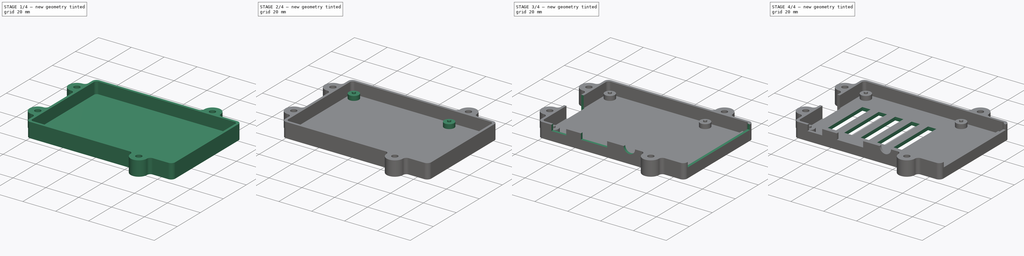
[diagram: build sequence overview — one tinted view per stage of 4, left to right]
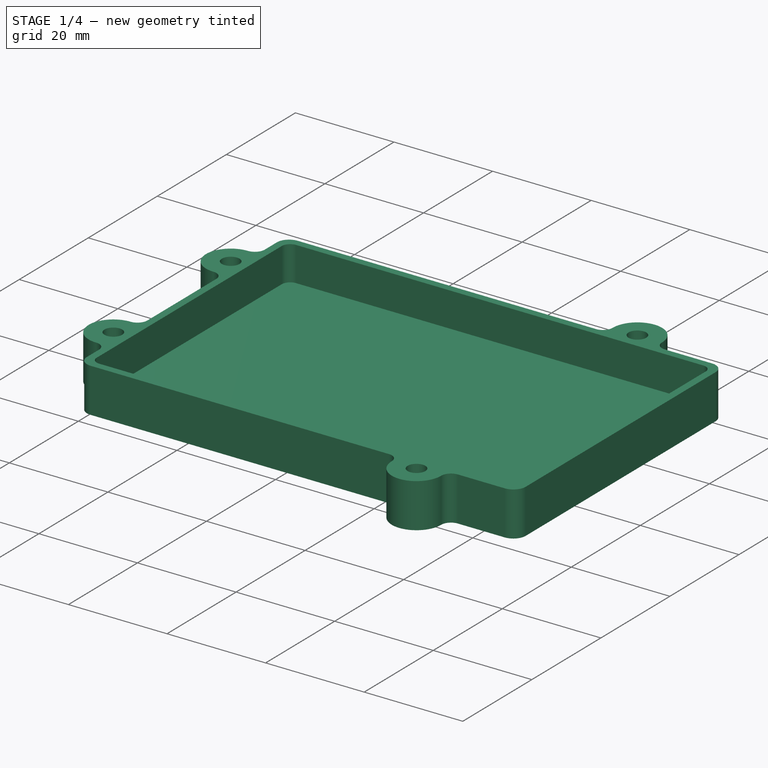
[diagram: stage 1 of 4 — iso view after this stage's code; geometry added in this stage tinted green]
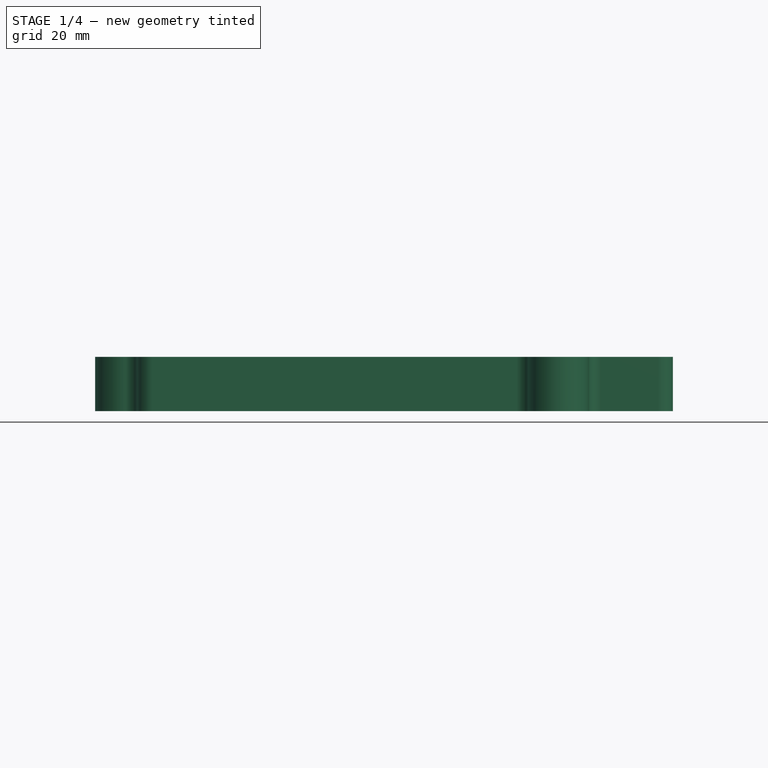
[diagram: stage 1 of 4 — front view after this stage's code; geometry added in this stage tinted green]
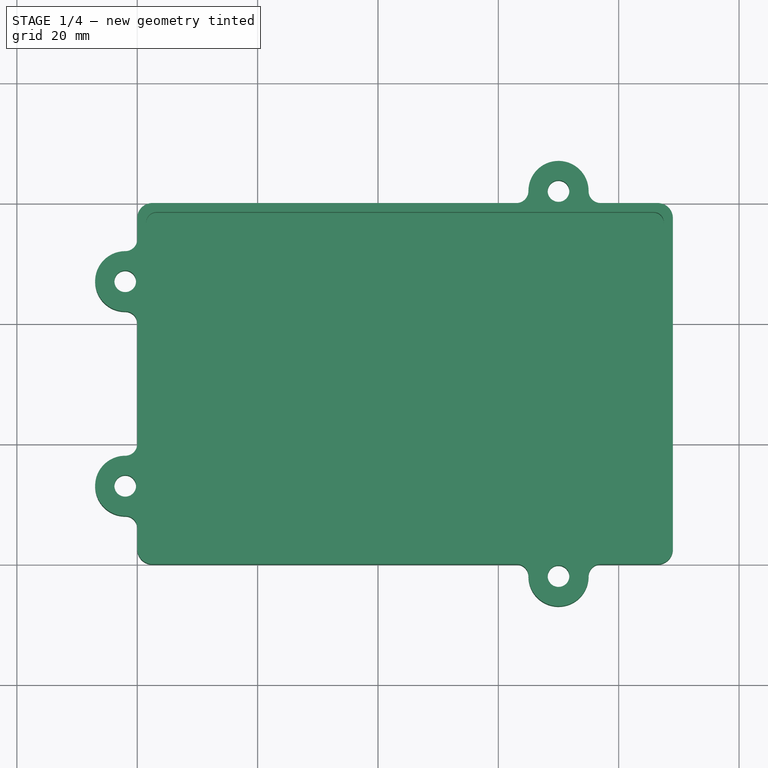
[diagram: stage 1 of 4 — top view after this stage's code; geometry added in this stage tinted green]
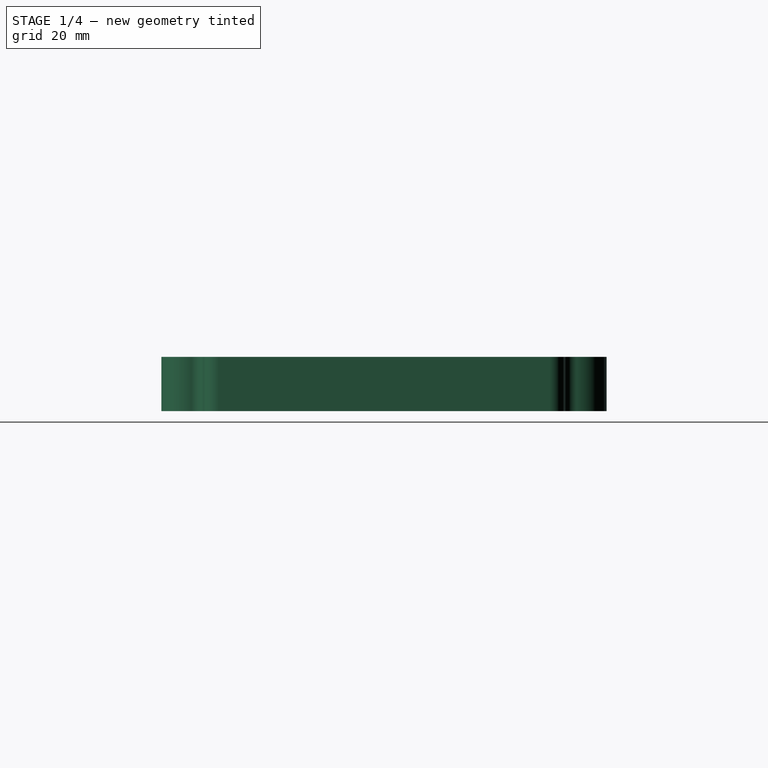
[diagram: stage 1 of 4 — right view after this stage's code; geometry added in this stage tinted green]
FCSTD DOCUMENT  (FreeCAD 0.14R3703 (Git))
Label: RPICase
License: CC-BY 3.0
LicenseURL: http://creativecommons.org/licenses/by/3.0/
objects: Sketcher::SketchObject×9, PartDesign::Pocket×6, PartDesign::Pad×3
note: 27 computed .brp shape members not serialized (recipe doc carries the construction recipe); baked Part::Feature solids carry a one-line shape summary decoded from their .brp

FEATURE [Sketcher::SketchObject] Sketch
  sketch-geometry (56):
    g0: LineSegment StartX=89.0026 StartY=2.5 StartZ=0 EndX=89.0026 EndY=57.5 EndZ=0
    g1: ArcOfCircle CenterX=2.5 CenterY=57.5 CenterZ=0 NormalX=0 NormalY=0 NormalZ=1 Radius=2.5 StartAngle=1.5708 EndAngle=3.14159
    g2: ArcOfCircle CenterX=86.5026 CenterY=57.5 CenterZ=0 NormalX=0 NormalY=0 NormalZ=1 Radius=2.5 StartAngle=2.3952e-08 EndAngle=1.5708
    g3: ArcOfCircle CenterX=2.5 CenterY=2.5 CenterZ=0 NormalX=0 NormalY=0 NormalZ=1 Radius=2.5 StartAngle=3.14159 EndAngle=4.71239
    g4: ArcOfCircle CenterX=86.5026 CenterY=2.5 CenterZ=0 NormalX=0 NormalY=0 NormalZ=1 Radius=2.5 StartAngle=4.71239 EndAngle=6.28319
    g5: ArcOfCircle CenterX=-2 CenterY=47 CenterZ=0 NormalX=0 NormalY=0 NormalZ=1 Radius=5 StartAngle=1.5708 EndAngle=4.71239
    g6: ArcOfCircle CenterX=-2 CenterY=13 CenterZ=0 NormalX=0 NormalY=0 NormalZ=1 Radius=5 StartAngle=1.5708 EndAngle=4.71239
    g7: LineSegment [constr] StartX=-2 StartY=52 StartZ=0 EndX=-2 EndY=47 EndZ=0
    g8: LineSegment [constr] StartX=-2 StartY=47 StartZ=0 EndX=-2 EndY=42 EndZ=0
    g9: LineSegment [constr] StartX=-2 StartY=42 StartZ=0 EndX=-2 EndY=18 EndZ=0
    g10: LineSegment [constr] StartX=-2 StartY=18 StartZ=0 EndX=-2 EndY=13 EndZ=0
    g11: LineSegment [constr] StartX=-2 StartY=13 StartZ=0 EndX=-2 EndY=8 EndZ=0
    g12: ArcOfCircle CenterX=-2 CenterY=40 CenterZ=0 NormalX=0 NormalY=0 NormalZ=1 Radius=2 StartAngle=0 EndAngle=1.5708
    g13: LineSegment [constr] StartX=-2 StartY=40 StartZ=0 EndX=0 EndY=40 EndZ=0
    g14: LineSegment [constr] StartX=-2 StartY=52 StartZ=0 EndX=-2 EndY=54 EndZ=0
    g15: LineSegment [constr] StartX=-2 StartY=54 StartZ=0 EndX=0 EndY=54 EndZ=0
    g16: ArcOfCircle CenterX=-2 CenterY=54 CenterZ=0 NormalX=0 NormalY=0 NormalZ=1 Radius=2 StartAngle=4.71239 EndAngle=6.28319
    g17: LineSegment [constr] StartX=-2 StartY=8 StartZ=0 EndX=-2 EndY=6 EndZ=0
    g18: LineSegment [constr] StartX=-2 StartY=6 StartZ=0 EndX=0 EndY=6 EndZ=0
    g19: ArcOfCircle CenterX=-2 CenterY=6 CenterZ=0 NormalX=0 NormalY=0 NormalZ=1 Radius=2 StartAngle=0 EndAngle=1.5708
    g20: ArcOfCircle CenterX=-2 CenterY=20 CenterZ=0 NormalX=0 NormalY=0 NormalZ=1 Radius=2 StartAngle=4.71239 EndAngle=6.28319
    g21: LineSegment [constr] StartX=-2 StartY=20 StartZ=0 EndX=0 EndY=20 EndZ=0
    g22: LineSegment StartX=0 StartY=57.5 StartZ=0 EndX=0 EndY=54 EndZ=0
    g23: LineSegment [constr] StartX=0 StartY=54 StartZ=0 EndX=0 EndY=40 EndZ=0
    g24: LineSegment StartX=0 StartY=40 StartZ=0 EndX=0 EndY=20 EndZ=0
    g25: LineSegment [constr] StartX=0 StartY=20 StartZ=0 EndX=0 EndY=6 EndZ=0
    g26: LineSegment StartX=0 StartY=6 StartZ=0 EndX=0 EndY=2.5 EndZ=0
    g27: LineSegment [constr] StartX=63 StartY=60 StartZ=0 EndX=63 EndY=62 EndZ=0
    g28: LineSegment [constr] StartX=63 StartY=62 StartZ=0 EndX=65 EndY=62 EndZ=0
    g29: LineSegment [constr] StartX=65 StartY=62 StartZ=0 EndX=70 EndY=62 EndZ=0
    g30: LineSegment [constr] StartX=70 StartY=62 StartZ=0 EndX=75 EndY=62 EndZ=0
    g31: LineSegment [constr] StartX=75 StartY=62 StartZ=0 EndX=77 EndY=62 EndZ=0
    g32: LineSegment [constr] StartX=77 StartY=62 StartZ=0 EndX=77 EndY=60 EndZ=0
    g33: ArcOfCircle CenterX=70 CenterY=62 CenterZ=0 NormalX=0 NormalY=0 NormalZ=1 Radius=5 StartAngle=0 EndAngle=3.14159
    g34: ArcOfCircle CenterX=77 CenterY=62 CenterZ=0 NormalX=0 NormalY=0 NormalZ=1 Radius=2 StartAngle=3.14159 EndAngle=4.71239
    g35: ArcOfCircle CenterX=63 CenterY=62 CenterZ=0 NormalX=0 NormalY=0 NormalZ=1 Radius=2 StartAngle=4.71239 EndAngle=6.28319
    g36: LineSegment [constr] StartX=63 StartY=0 StartZ=0 EndX=63 EndY=-2 EndZ=0
    g37: LineSegment [constr] StartX=63 StartY=-2 StartZ=0 EndX=65 EndY=-2 EndZ=0
    g38: LineSegment [constr] StartX=65 StartY=-2 StartZ=0 EndX=70 EndY=-2 EndZ=0
    g39: LineSegment [constr] StartX=70 StartY=-2 StartZ=0 EndX=75 EndY=-2 EndZ=0
    g40: LineSegment [constr] StartX=75 StartY=-2 StartZ=0 EndX=77 EndY=-2 EndZ=0
    g41: LineSegment [constr] StartX=77 StartY=-2 StartZ=0 EndX=77 EndY=0 EndZ=0
    g42: ArcOfCircle CenterX=70 CenterY=-2 CenterZ=0 NormalX=0 NormalY=0 NormalZ=1 Radius=5 StartAngle=3.14159 EndAngle=6.28319
    g43: ArcOfCircle CenterX=77 CenterY=-2 CenterZ=0 NormalX=0 NormalY=0 NormalZ=1 Radius=2 StartAngle=1.5708 EndAngle=3.14159
    g44: ArcOfCircle CenterX=63 CenterY=-2 CenterZ=0 NormalX=0 NormalY=0 NormalZ=1 Radius=2 StartAngle=0 EndAngle=1.5708
    g45: LineSegment [constr] StartX=70 StartY=62 StartZ=0 EndX=70 EndY=-2 EndZ=0
    g46: LineSegment StartX=2.5 StartY=0 StartZ=0 EndX=63 EndY=0 EndZ=0
    g47: LineSegment [constr] StartX=63 StartY=0 StartZ=0 EndX=77 EndY=0 EndZ=0
    g48: LineSegment StartX=77 StartY=0 StartZ=0 EndX=86.5026 EndY=0 EndZ=0
    g49: LineSegment StartX=2.5 StartY=60 StartZ=0 EndX=63 EndY=60 EndZ=0
    g50: LineSegment [constr] StartX=63 StartY=60 StartZ=0 EndX=77 EndY=60 EndZ=0
    g51: LineSegment StartX=77 StartY=60 StartZ=0 EndX=86.5026 EndY=60 EndZ=0
    g52: Circle CenterX=70 CenterY=62 CenterZ=0 NormalX=0 NormalY=0 NormalZ=1 Radius=1.8
    g53: Circle CenterX=-2 CenterY=47 CenterZ=0 NormalX=0 NormalY=0 NormalZ=1 Radius=1.8
    g54: Circle CenterX=-2 CenterY=13 CenterZ=0 NormalX=0 NormalY=0 NormalZ=1 Radius=1.8
    g55: Circle CenterX=70 CenterY=-2 CenterZ=0 NormalX=0 NormalY=0 NormalZ=1 Radius=1.8
  constraints (152):
    c: Vertical(g0)
    c: Coincident(g2,g0)
    c: Equal(g1,g2)
    c: Radius(g1) = 2.5
    c: Coincident(g4,g0)
    c: DistanceY(g2,g4) = -60
    c: Tangent(g4,g0)
    c: DistanceY(g3) = 0
    c: Equal(g1,g3)
    c: Equal(g3,g4)
    c: Coincident(g7,g5)
    c: Coincident(g7,g5)
    c: Coincident(g7,g8)
    c: Coincident(g8,g5)
    c: Coincident(g8,g9)
    c: Coincident(g9,g6)
    c: Vertical(g9)
    c: Coincident(g9,g10)
    c: Coincident(g10,g6)
    c: Vertical(g10)
    c: Coincident(g10,g11)
    c: Coincident(g11,g6)
    c: Vertical(g11)
    c: Vertical(g8)
    c: Vertical(g7)
    c: Equal(g5,g6)
    c: Radius(g6) = 5
    c: PointOnObject(g12,g9)
    c: Coincident(g12,g5)
    c: Coincident(g13,g12)
    c: Coincident(g13,g12)
    c: Horizontal(g13)
    c: Coincident(g14,g5)
    c: Vertical(g14)
    c: Coincident(g14,g15)
    c: Horizontal(g15)
    c: Coincident(g16,g14)
    c: Coincident(g16,g5)
    c: Coincident(g16,g15)
    c: Coincident(g17,g6)
    c: Vertical(g17)
    c: Coincident(g17,g18)
    c: Horizontal(g18)
    c: Coincident(g19,g17)
    c: Coincident(g19,g6)
    c: Coincident(g19,g18)
    c: PointOnObject(g20,g9)
    c: Coincident(g20,g6)
    c: Coincident(g21,g20)
    c: Coincident(g21,g20)
    c: Horizontal(g21)
    c: DistanceX(g18) = 2
    c: DistanceY(g5,g6) = -34
    c: Coincident(g22,g1)
    c: Coincident(g22,g15)
    c: Vertical(g22)
    c: Coincident(g22,g23)
    c: Coincident(g23,g12)
    c: Vertical(g23)
    c: Coincident(g23,g24)
    c: Coincident(g24,g20)
    c: Vertical(g24)
    c: Coincident(g24,g25)
    c: Coincident(g25,g18)
    c: Vertical(g25)
    c: Tangent(g25,g1)
    c: Coincident(g25,g26)
    c: Vertical(g26)
    c: Equal(g26,g22)
    c: Coincident(g26,g3)
    c: Tangent(g26,g3)
    c: DistanceX(g3) = 0
    c: DistanceX(g3,g0) = 89.0026
    c: Vertical(g27)
    c: Coincident(g27,g28)
    c: Horizontal(g28)
    c: Coincident(g28,g29)
    c: Horizontal(g29)
    c: Coincident(g29,g30)
    c: Horizontal(g30)
    c: Coincident(g30,g31)
    c: Horizontal(g31)
    c: Coincident(g31,g32)
    c: Vertical(g32)
    c: Coincident(g33,g29)
    c: Coincident(g33,g28)
    c: Coincident(g33,g30)
    c: Coincident(g34,g31)
    c: Coincident(g34,g30)
    c: Coincident(g34,g32)
    c: Coincident(g35,g27)
    c: Coincident(g35,g28)
    c: Coincident(g35,g27)
    c: Equal(g33,g6)
    c: Equal(g18,g27)
    c: Vertical(g36)
    c: Coincident(g36,g37)
    c: Horizontal(g37)
    c: Coincident(g37,g38)
    c: Horizontal(g38)
    c: Coincident(g38,g39)
    c: Horizontal(g39)
    c: Coincident(g39,g40)
    c: Horizontal(g40)
    c: Coincident(g40,g41)
    c: Vertical(g41)
    c: Coincident(g42,g38)
    c: Coincident(g42,g37)
    c: Coincident(g42,g39)
    c: Coincident(g43,g40)
    c: Coincident(g43,g41)
    c: Coincident(g43,g39)
    c: Coincident(g44,g36)
    c: Coincident(g44,g36)
    c: Coincident(g44,g37)
    c: Equal(g6,g42)
    c: Equal(g18,g36)
    c: Coincident(g45,g29)
    c: Coincident(g45,g38)
    c: Vertical(g45)
    c: DistanceX(g38) = 70
    c: Coincident(g46,g3)
    c: Coincident(g46,g36)
    c: Horizontal(g46)
    c: Coincident(g46,g47)
    c: Coincident(g47,g41)
    c: Horizontal(g47)
    c: Coincident(g47,g48)
    c: Coincident(g48,g4)
    c: Horizontal(g48)
    c: Tangent(g48,g4)
    c: Tangent(g3,g46)
    c: Coincident(g49,g1)
    c: Coincident(g49,g27)
    c: Horizontal(g49)
    c: Coincident(g49,g50)
    c: Coincident(g50,g32)
    c: Horizontal(g50)
    c: Coincident(g50,g51)
    c: Coincident(g51,g2)
    c: Horizontal(g51)
    c: Tangent(g2,g51)
    c: Tangent(g2,g0)
    c: Tangent(g1,g49)
    c: Coincident(g52,g29)
    c: Radius(g52) = 1.8
    c: Coincident(g53,g5)
    c: Equal(g53,g52)
    c: Coincident(g54,g6)
    c: Equal(g54,g52)
    c: Equal(g55,g52)
    c: Coincident(g55,g38)
FEATURE [PartDesign::Pad] Pad
  Length = 9
  Length2 = 100
  Sketch = -> Sketch
  Type = 0
FEATURE [Sketcher::SketchObject] Sketch001
  Placement = pos=(0,0,9) rot=(0,0,1;0rad)
  Support = -> Pad [Face30]
  sketch-geometry (8):
    g0: LineSegment StartX=87.5 StartY=3.2 StartZ=0 EndX=87.5 EndY=56.8 EndZ=0
    g1: LineSegment StartX=1.5 StartY=56.8 StartZ=0 EndX=1.5 EndY=3.2 EndZ=0
    g2: ArcOfCircle CenterX=3.2 CenterY=56.8 CenterZ=0 NormalX=0 NormalY=0 NormalZ=1 Radius=1.7 StartAngle=1.5708 EndAngle=3.14159
    g3: ArcOfCircle CenterX=85.8 CenterY=56.8 CenterZ=0 NormalX=0 NormalY=0 NormalZ=1 Radius=1.7 StartAngle=4.687e-09 EndAngle=1.5708
    g4: LineSegment StartX=3.19999 StartY=58.5 StartZ=0 EndX=85.8 EndY=58.5 EndZ=0
    g5: ArcOfCircle CenterX=3.2 CenterY=3.2 CenterZ=0 NormalX=0 NormalY=0 NormalZ=1 Radius=1.7 StartAngle=3.14159 EndAngle=4.71238
    g6: ArcOfCircle CenterX=85.8 CenterY=3.2 CenterZ=0 NormalX=0 NormalY=0 NormalZ=1 Radius=1.7 StartAngle=4.71239 EndAngle=6.28319
    g7: LineSegment StartX=3.19999 StartY=1.5 StartZ=0 EndX=85.8 EndY=1.5 EndZ=0
  constraints (28):
    c: Vertical(g0)
    c: Vertical(g1)
    c: Coincident(g2,g1)
    c: Coincident(g3,g0)
    c: Coincident(g4,g2)
    c: Coincident(g4,g3)
    c: Horizontal(g4)
    c: Tangent(g2,g4)
    c: Tangent(g3,g4)
    c: Tangent(g3,g0)
    c: Tangent(g2,g1)
    c: DistanceX(g1,g0) = 86
    c: Coincident(g5,g1)
    c: Coincident(g6,g0)
    c: Coincident(g7,g5)
    c: Coincident(g7,g6)
    c: Horizontal(g7)
    c: DistanceY(g3,g6) = -57
    c: Radius(g3) = 1.7
    c: Equal(g3,g2)
    c: Equal(g2,g5)
    c: Equal(g5,g6)
    c: Tangent(g5,g7)
    c: Tangent(g6,g7)
    c: Tangent(g6,g0)
    c: Tangent(g5,g1)
    c: DistanceY(g5) = 1.5
    c: DistanceX(g1) = 1.5
FEATURE [PartDesign::Pocket] Pocket
  Length = 7
  Sketch = -> Sketch001
  Type = 0
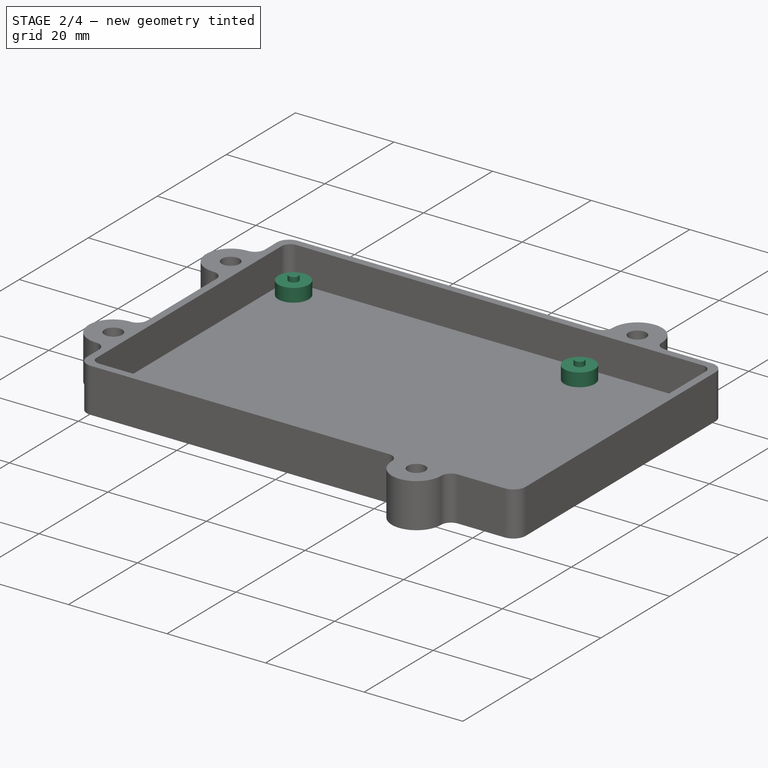
[diagram: stage 2 of 4 — iso view after this stage's code; geometry added in this stage tinted green]
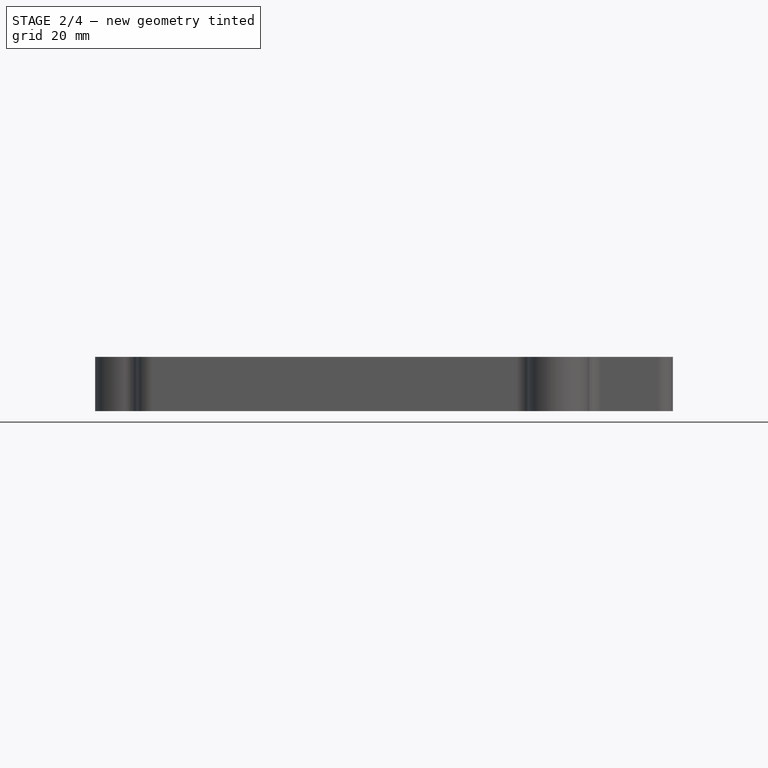
[diagram: stage 2 of 4 — front view after this stage's code; geometry added in this stage tinted green]
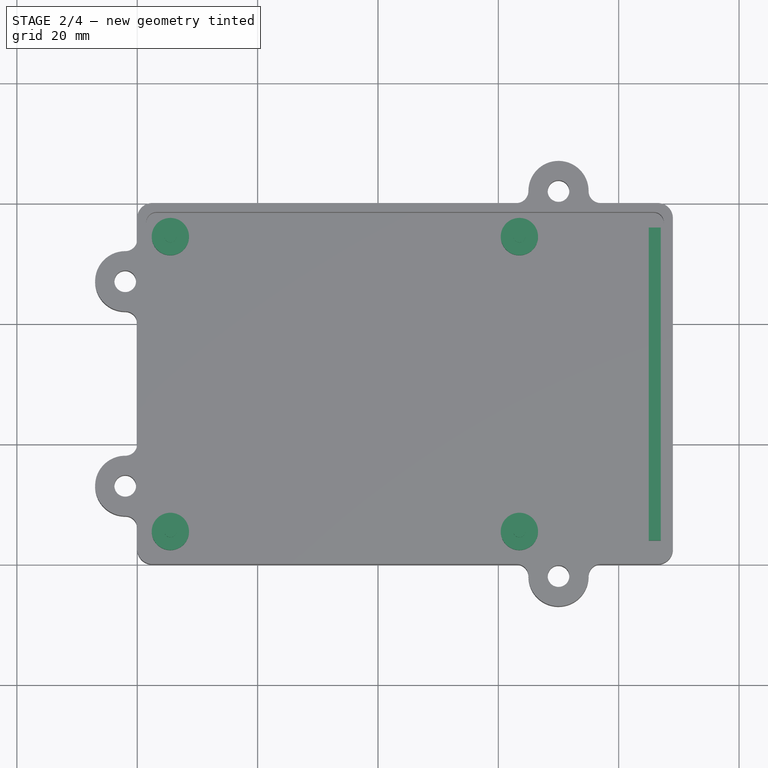
[diagram: stage 2 of 4 — top view after this stage's code; geometry added in this stage tinted green]
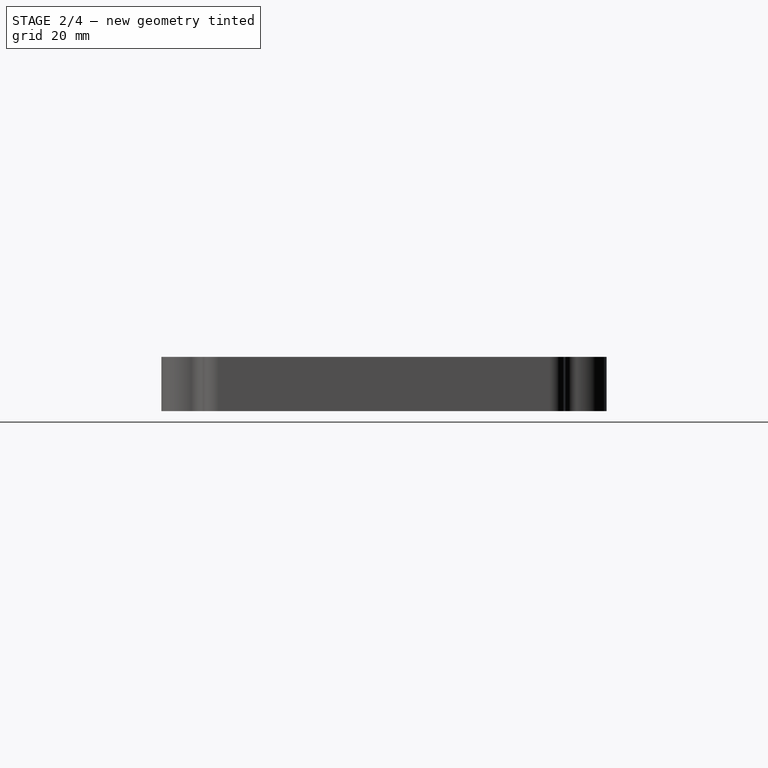
[diagram: stage 2 of 4 — right view after this stage's code; geometry added in this stage tinted green]
FEATURE [Sketcher::SketchObject] Sketch002
  Placement = pos=(0,0,2) rot=(0,0,1;0rad)
  Support = -> Pocket [Face39]
  sketch-geometry (12):
    g0: Circle CenterX=5.5 CenterY=5.5 CenterZ=0 NormalX=0 NormalY=0 NormalZ=1 Radius=3.1
    g1: Circle CenterX=5.5 CenterY=54.5 CenterZ=0 NormalX=0 NormalY=0 NormalZ=1 Radius=3.1
    g2: Circle CenterX=63.5 CenterY=54.5 CenterZ=0 NormalX=0 NormalY=0 NormalZ=1 Radius=3.1
    g3: Circle CenterX=63.5 CenterY=5.5 CenterZ=0 NormalX=0 NormalY=0 NormalZ=1 Radius=3.1
    g4: LineSegment [constr] StartX=5.5 StartY=54.5 StartZ=0 EndX=63.5 EndY=54.5 EndZ=0
    g5: LineSegment [constr] StartX=63.5 StartY=54.5 StartZ=0 EndX=63.5 EndY=5.5 EndZ=0
    g6: LineSegment [constr] StartX=63.5 StartY=5.5 StartZ=0 EndX=5.5 EndY=5.5 EndZ=0
    g7: LineSegment [constr] StartX=5.5 StartY=5.5 StartZ=0 EndX=5.5 EndY=54.5 EndZ=0
    g8: LineSegment StartX=87 StartY=56 StartZ=0 EndX=85 EndY=56 EndZ=0
    g9: LineSegment StartX=85 StartY=56 StartZ=0 EndX=85 EndY=4 EndZ=0
    g10: LineSegment StartX=85 StartY=4 StartZ=0 EndX=87 EndY=4 EndZ=0
    g11: LineSegment StartX=87 StartY=4 StartZ=0 EndX=87 EndY=56 EndZ=0
  constraints (32):
    c: DistanceX(g0) = 5.5
    c: DistanceY(g0) = 5.5
    c: Coincident(g4,g5)
    c: Coincident(g5,g6)
    c: Coincident(g6,g7)
    c: Coincident(g7,g4)
    c: Horizontal(g4)
    c: Horizontal(g6)
    c: Vertical(g5)
    c: Vertical(g7)
    c: Coincident(g4,g1)
    c: Coincident(g5,g3)
    c: Coincident(g4,g2)
    c: Coincident(g0,g6)
    c: DistanceX(g4) = 58
    c: DistanceY(g7) = 49
    c: Equal(g3,g2)
    c: Equal(g2,g1)
    c: Equal(g1,g0)
    c: Radius(g0) = 3.1
    c: Coincident(g8,g9)
    c: Coincident(g9,g10)
    c: Coincident(g10,g11)
    c: Coincident(g11,g8)
    c: Horizontal(g8)
    c: Horizontal(g10)
    c: Vertical(g9)
    c: Vertical(g11)
    c: DistanceX(g10) = 2
    c: DistanceX(g9) = 85
    c: DistanceY(g9) = 4
    c: DistanceY(g11) = 52
FEATURE [PartDesign::Pad] Pad001
  Length = 2.7
  Length2 = 100
  Sketch = -> Sketch002
  Type = 0
FEATURE [Sketcher::SketchObject] Sketch003
  Placement = pos=(0,0,4.7) rot=(0,0,1;0rad)
  Support = -> Pad001 [Face48]
  sketch-geometry (8):
    g0: LineSegment [constr] StartX=5.5 StartY=54.5 StartZ=0 EndX=63.5 EndY=54.5 EndZ=0
    g1: LineSegment [constr] StartX=63.5 StartY=54.5 StartZ=0 EndX=63.5 EndY=5.5 EndZ=0
    g2: LineSegment [constr] StartX=63.5 StartY=5.5 StartZ=0 EndX=5.5 EndY=5.5 EndZ=0
    g3: LineSegment [constr] StartX=5.5 StartY=5.5 StartZ=0 EndX=5.5 EndY=54.5 EndZ=0
    g4: Circle CenterX=5.5 CenterY=54.5 CenterZ=0 NormalX=0 NormalY=0 NormalZ=1 Radius=1
    g5: Circle CenterX=63.5 CenterY=54.5 CenterZ=0 NormalX=0 NormalY=0 NormalZ=1 Radius=1
    g6: Circle CenterX=63.5 CenterY=5.5 CenterZ=0 NormalX=0 NormalY=0 NormalZ=1 Radius=1
    g7: Circle CenterX=5.5 CenterY=5.5 CenterZ=0 NormalX=0 NormalY=0 NormalZ=1 Radius=1
  constraints (20):
    c: Coincident(g0,g1)
    c: Coincident(g1,g2)
    c: Coincident(g2,g3)
    c: Coincident(g3,g0)
    c: Horizontal(g0)
    c: Horizontal(g2)
    c: Vertical(g1)
    c: Vertical(g3)
    c: DistanceX(g2) = 5.5
    c: DistanceY(g2) = 5.5
    c: DistanceY(g3) = 49
    c: DistanceX(g2) = -58
    c: Coincident(g4,g0)
    c: Coincident(g5,g0)
    c: Coincident(g6,g1)
    c: Coincident(g7,g2)
    c: Equal(g7,g4)
    c: Equal(g4,g5)
    c: Equal(g5,g6)
    c: Radius(g7) = 1
FEATURE [PartDesign::Pad] Pad002
  Length = 1
  Length2 = 100
  Sketch = -> Sketch003
  Type = 0
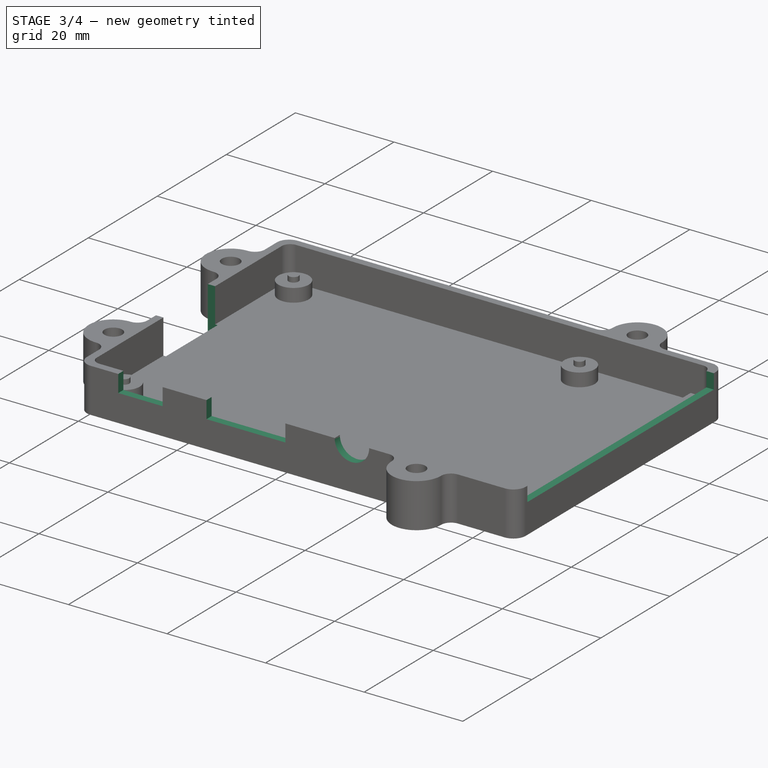
[diagram: stage 3 of 4 — iso view after this stage's code; geometry added in this stage tinted green]
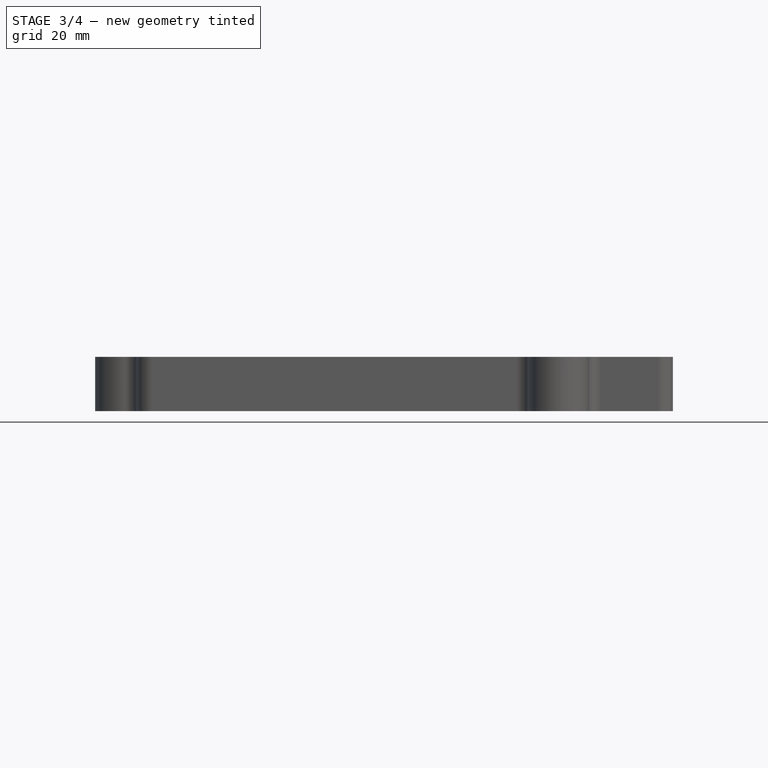
[diagram: stage 3 of 4 — front view after this stage's code; geometry added in this stage tinted green]
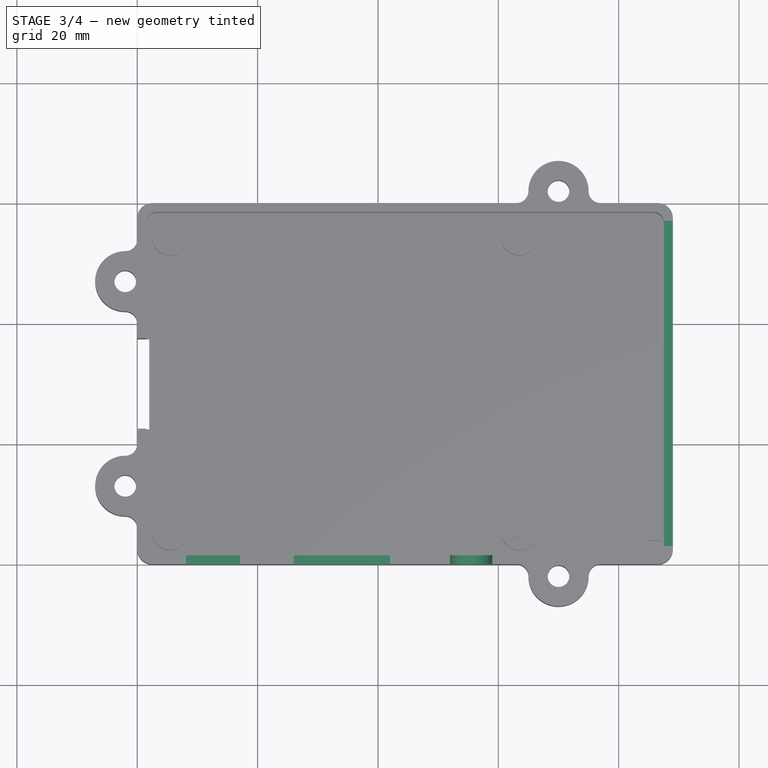
[diagram: stage 3 of 4 — top view after this stage's code; geometry added in this stage tinted green]
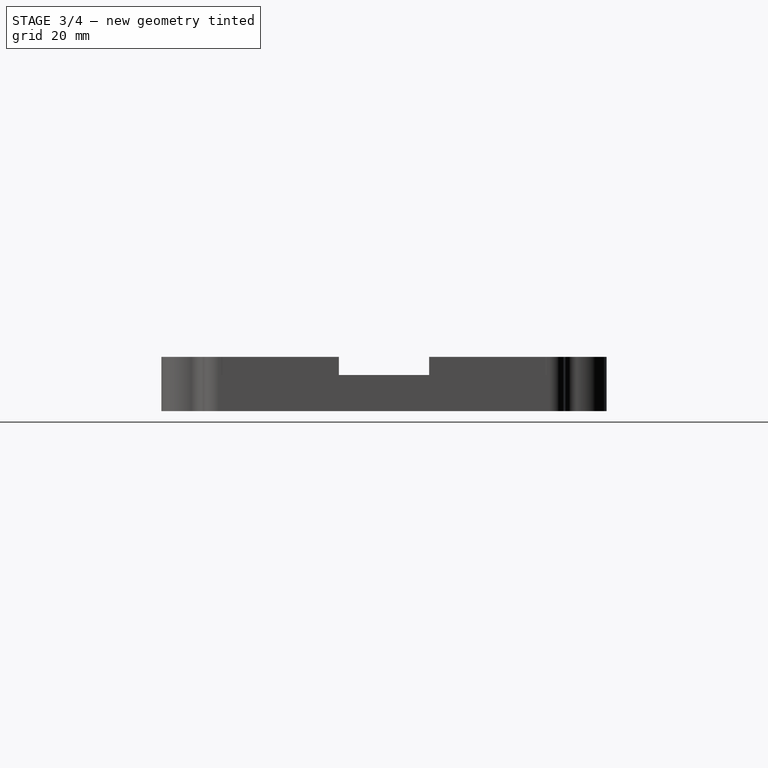
[diagram: stage 3 of 4 — right view after this stage's code; geometry added in this stage tinted green]
FEATURE [Sketcher::SketchObject] Sketch004
  Placement = pos=(0,0,0) rot=(0.57735,-0.57735,-0.57735;2.0944rad)
  Support = -> Pad002 [Face15]
  sketch-geometry (5):
    g0: LineSegment StartX=-37.5 StartY=9 StartZ=0 EndX=-22.5 EndY=9 EndZ=0
    g1: LineSegment StartX=-22.5 StartY=9 StartZ=0 EndX=-22.5 EndY=0 EndZ=0
    g2: LineSegment StartX=-37.5 StartY=0 StartZ=0 EndX=-37.5 EndY=9 EndZ=0
    g3: LineSegment StartX=-37.5 StartY=0 StartZ=0 EndX=-30 EndY=0 EndZ=0
    g4: LineSegment StartX=-30 StartY=0 StartZ=0 EndX=-22.5 EndY=0 EndZ=0
  constraints (15):
    c: Coincident(g0,g1)
    c: Coincident(g2,g0)
    c: Horizontal(g0)
    c: Vertical(g1)
    c: Vertical(g2)
    c: Coincident(g3,g2)
    c: Horizontal(g3)
    c: Coincident(g3,g4)
    c: Horizontal(g4)
    c: Coincident(g1,g4)
    c: Equal(g4,g3)
    c: DistanceX(g3) = -30
    c: DistanceY(g3) = 0
    c: DistanceY(g1) = -9
    c: DistanceX(g0) = 15
FEATURE [PartDesign::Pocket] Pocket001
  Length = 2
  Sketch = -> Sketch004
  Type = 0
FEATURE [Sketcher::SketchObject] Sketch005
  Placement = pos=(89.0026,0,0) rot=(0.57735,0.57735,0.57735;2.0944rad)
  Support = -> Pocket001 [Face7]
  sketch-geometry (5):
    g0: LineSegment StartX=3 StartY=9 StartZ=0 EndX=57 EndY=9 EndZ=0
    g1: LineSegment StartX=57 StartY=9 StartZ=0 EndX=57 EndY=6 EndZ=0
    g2: LineSegment StartX=3 StartY=6 StartZ=0 EndX=3 EndY=9 EndZ=0
    g3: LineSegment StartX=3 StartY=6 StartZ=0 EndX=30 EndY=6 EndZ=0
    g4: LineSegment StartX=30 StartY=6 StartZ=0 EndX=57 EndY=6 EndZ=0
  constraints (15):
    c: Coincident(g0,g1)
    c: Coincident(g2,g0)
    c: Horizontal(g0)
    c: Vertical(g1)
    c: Vertical(g2)
    c: DistanceY(g2) = 3
    c: DistanceX(g0) = 54
    c: Coincident(g3,g2)
    c: Horizontal(g3)
    c: Coincident(g3,g4)
    c: Coincident(g4,g1)
    c: Horizontal(g4)
    c: Equal(g4,g3)
    c: DistanceX(g3) = 30
    c: DistanceY(g3) = 6
FEATURE [PartDesign::Pocket] Pocket002
  Length = 2
  Sketch = -> Sketch005
  Type = 0
FEATURE [Sketcher::SketchObject] Sketch006
  Placement = pos=(0,0,0) rot=(1,0,0;1.5708rad)
  Support = -> Pocket002 [Face1]
  sketch-geometry (12):
    g0: Circle CenterX=55.5 CenterY=9 CenterZ=0 NormalX=0 NormalY=0 NormalZ=1 Radius=3.5
    g1: LineSegment StartX=42 StartY=5.5 StartZ=0 EndX=42 EndY=13.5 EndZ=0
    g2: LineSegment StartX=42 StartY=13.5 StartZ=0 EndX=26 EndY=13.5 EndZ=0
    g3: LineSegment StartX=26 StartY=13.5 StartZ=0 EndX=26 EndY=5.5 EndZ=0
    g4: LineSegment StartX=17.1 StartY=5.5 StartZ=0 EndX=17.1 EndY=9 EndZ=0
    g5: LineSegment StartX=17.1 StartY=9 StartZ=0 EndX=8.1 EndY=9 EndZ=0
    g6: LineSegment StartX=8.1 StartY=9 StartZ=0 EndX=8.1 EndY=5.5 EndZ=0
    g7: LineSegment StartX=26 StartY=5.5 StartZ=0 EndX=34 EndY=5.5 EndZ=0
    g8: LineSegment StartX=34 StartY=5.5 StartZ=0 EndX=42 EndY=5.5 EndZ=0
    g9: LineSegment StartX=8.1 StartY=5.5 StartZ=0 EndX=12.6 EndY=5.5 EndZ=0
    g10: LineSegment StartX=12.6 StartY=5.5 StartZ=0 EndX=17.1 EndY=5.5 EndZ=0
    g11: LineSegment [constr] StartX=17.1 StartY=5.5 StartZ=0 EndX=26 EndY=5.5 EndZ=0
  constraints (35):
    c: Coincident(g1,g2)
    c: Coincident(g2,g3)
    c: Horizontal(g2)
    c: Vertical(g1)
    c: Vertical(g3)
    c: Coincident(g4,g5)
    c: Coincident(g5,g6)
    c: Horizontal(g5)
    c: Vertical(g4)
    c: Vertical(g6)
    c: DistanceX(g5) = -9
    c: DistanceX(g2) = -16
    c: Radius(g0) = 3.5
    c: Coincident(g3,g7)
    c: Horizontal(g7)
    c: Coincident(g7,g8)
    c: Coincident(g8,g1)
    c: Horizontal(g8)
    c: Coincident(g6,g9)
    c: Horizontal(g9)
    c: Coincident(g9,g10)
    c: Coincident(g10,g4)
    c: Horizontal(g10)
    c: Equal(g10,g9)
    c: Equal(g7,g8)
    c: DistanceY(g4) = 3.5
    c: DistanceY(g1) = 8
    c: Coincident(g11,g4)
    c: Coincident(g11,g3)
    c: Horizontal(g11)
    c: DistanceX(g-1,g9) = 12.6
    c: DistanceX(g-1,g7) = 34
    c: DistanceX(g-1,g0) = 55.5
    c: DistanceY(g-1,g0) = 9
    c: DistanceY(g-1,g6) = 5.5
FEATURE [PartDesign::Pocket] Pocket003
  Length = 5
  Sketch = -> Sketch006
  Type = 0
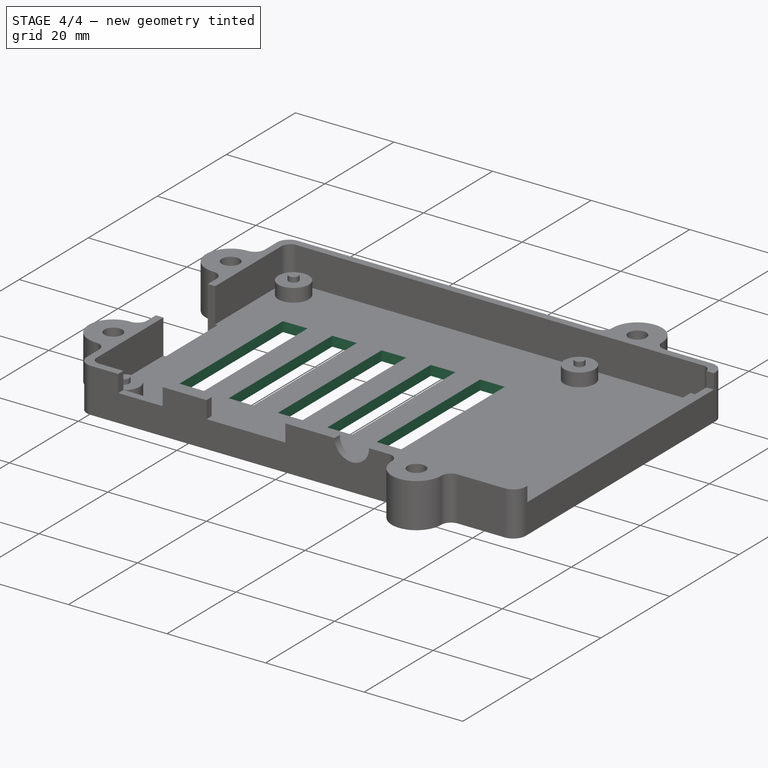
[diagram: stage 4 of 4 — iso view after this stage's code; geometry added in this stage tinted green]
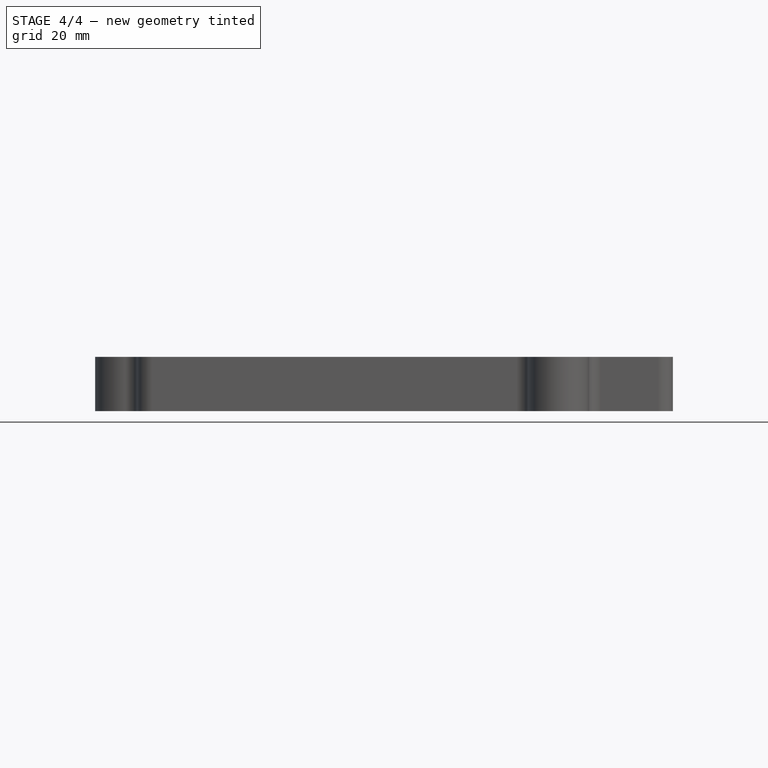
[diagram: stage 4 of 4 — front view after this stage's code; geometry added in this stage tinted green]
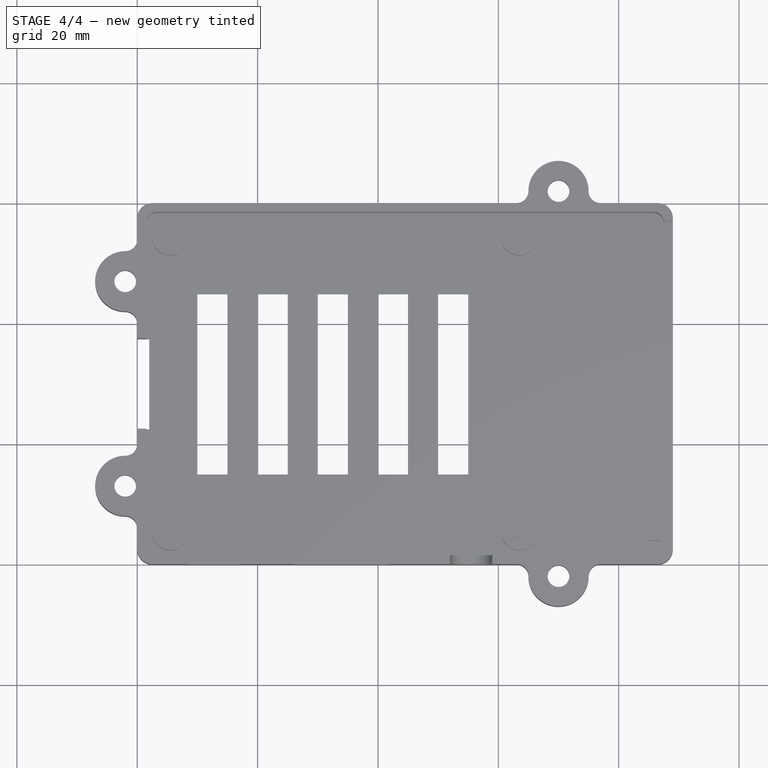
[diagram: stage 4 of 4 — top view after this stage's code; geometry added in this stage tinted green]
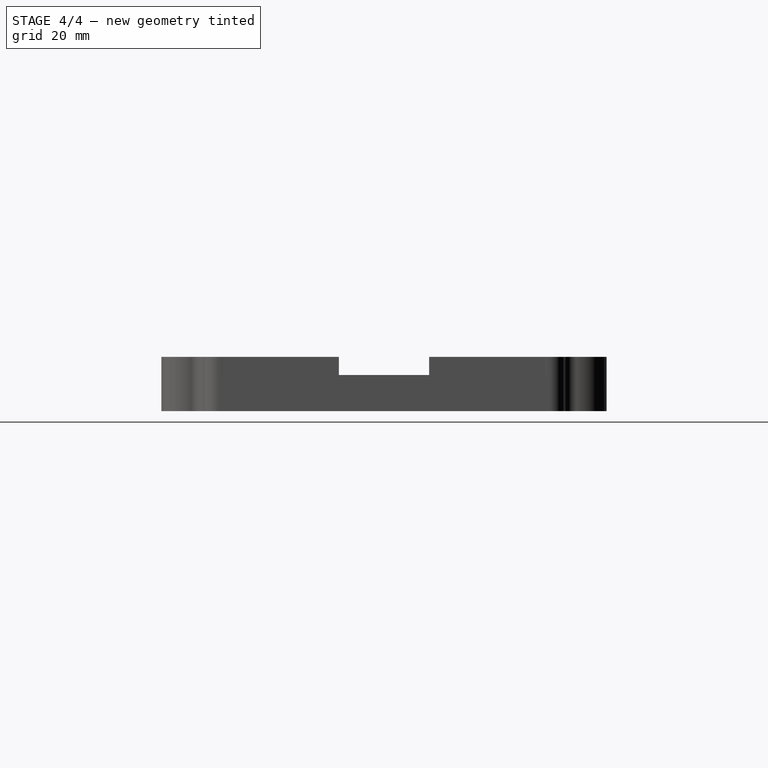
[diagram: stage 4 of 4 — right view after this stage's code; geometry added in this stage tinted green]
FEATURE [Sketcher::SketchObject] Sketch008
  Placement = pos=(0,0,0) rot=(1,0,0;3.14159rad)
  Support = -> Pocket003 [Face4]
  sketch-geometry (41):
    g0: LineSegment StartX=-5 StartY=-14.7321 StartZ=0 EndX=-5 EndY=-11.2679 EndZ=0
    g1: LineSegment StartX=-5 StartY=-11.2679 StartZ=0 EndX=-2 EndY=-9.5359 EndZ=0
    g2: LineSegment StartX=-2 StartY=-9.5359 StartZ=0 EndX=1 EndY=-11.2679 EndZ=0
    g3: LineSegment StartX=1 StartY=-11.2679 StartZ=0 EndX=1 EndY=-14.7321 EndZ=0
    g4: LineSegment StartX=1 StartY=-14.7321 StartZ=0 EndX=-2 EndY=-16.4641 EndZ=0
    g5: LineSegment StartX=-2 StartY=-16.4641 StartZ=0 EndX=-5 EndY=-14.7321 EndZ=0
    g6: LineSegment [constr] StartX=-5 StartY=-14.7321 StartZ=0 EndX=-2 EndY=-13 EndZ=0
    g7: LineSegment [constr] StartX=-2 StartY=-13 StartZ=0 EndX=1 EndY=-14.7321 EndZ=0
    g8: LineSegment [constr] StartX=-5 StartY=-11.2679 StartZ=0 EndX=-2 EndY=-13 EndZ=0
    g9: LineSegment [constr] StartX=-2 StartY=-13 StartZ=0 EndX=-2 EndY=-9.5359 EndZ=0
    g10: LineSegment [constr] StartX=-2 StartY=-13 StartZ=0 EndX=1 EndY=-11.2679 EndZ=0
    g11: LineSegment StartX=-5 StartY=-48.7321 StartZ=0 EndX=-5 EndY=-45.2679 EndZ=0
    g12: LineSegment StartX=-5 StartY=-45.2679 StartZ=0 EndX=-2 EndY=-43.5359 EndZ=0
    g13: LineSegment StartX=-2 StartY=-43.5359 StartZ=0 EndX=1 EndY=-45.2679 EndZ=0
    g14: LineSegment StartX=1 StartY=-45.2679 StartZ=0 EndX=1 EndY=-48.7321 EndZ=0
    g15: LineSegment StartX=1 StartY=-48.7321 StartZ=0 EndX=-2 EndY=-50.4641 EndZ=0
    g16: LineSegment StartX=-2 StartY=-50.4641 StartZ=0 EndX=-5 EndY=-48.7321 EndZ=0
    g17: LineSegment [constr] StartX=-2 StartY=-43.5359 StartZ=0 EndX=-2 EndY=-47 EndZ=0
    g18: LineSegment [constr] StartX=-2 StartY=-47 StartZ=0 EndX=-5 EndY=-45.2679 EndZ=0
    g19: LineSegment [constr] StartX=-5 StartY=-48.7321 StartZ=0 EndX=-2 EndY=-47 EndZ=0
    g20: LineSegment [constr] StartX=-2 StartY=-47 StartZ=0 EndX=-2 EndY=-50.4641 EndZ=0
    g21: LineSegment StartX=67 StartY=0.267949 StartZ=0 EndX=67 EndY=3.73205 EndZ=0
    g22: LineSegment StartX=67 StartY=3.73205 StartZ=0 EndX=70 EndY=5.4641 EndZ=0
    g23: LineSegment StartX=70 StartY=5.4641 StartZ=0 EndX=73 EndY=3.73205 EndZ=0
    g24: LineSegment StartX=73 StartY=3.73205 StartZ=0 EndX=73 EndY=0.267949 EndZ=0
    g25: LineSegment StartX=73 StartY=0.267949 StartZ=0 EndX=70 EndY=-1.4641 EndZ=0
    g26: LineSegment StartX=70 StartY=-1.4641 StartZ=0 EndX=67 EndY=0.267949 EndZ=0
    g27: LineSegment [constr] StartX=70 StartY=5.4641 StartZ=0 EndX=70 EndY=2 EndZ=0
    g28: LineSegment [constr] StartX=70 StartY=2 StartZ=0 EndX=67 EndY=3.73205 EndZ=0
    g29: LineSegment [constr] StartX=67 StartY=0.267949 StartZ=0 EndX=70 EndY=2 EndZ=0
    g30: LineSegment [constr] StartX=70 StartY=2 StartZ=0 EndX=70 EndY=-1.4641 EndZ=0
    g31: LineSegment StartX=67 StartY=-63.7321 StartZ=0 EndX=67 EndY=-60.2679 EndZ=0
    g32: LineSegment StartX=67 StartY=-60.2679 StartZ=0 EndX=70 EndY=-58.5359 EndZ=0
    g33: LineSegment StartX=70 StartY=-58.5359 StartZ=0 EndX=73 EndY=-60.2679 EndZ=0
    g34: LineSegment StartX=73 StartY=-60.2679 StartZ=0 EndX=73 EndY=-63.7321 EndZ=0
    g35: LineSegment StartX=73 StartY=-63.7321 StartZ=0 EndX=70 EndY=-65.4641 EndZ=0
    g36: LineSegment StartX=70 StartY=-65.4641 StartZ=0 EndX=67 EndY=-63.7321 EndZ=0
    g37: LineSegment [constr] StartX=67 StartY=-60.2679 StartZ=0 EndX=70 EndY=-62 EndZ=0
    g38: LineSegment [constr] StartX=70 StartY=-62 StartZ=0 EndX=70 EndY=-58.5359 EndZ=0
    g39: LineSegment [constr] StartX=67 StartY=-63.7321 StartZ=0 EndX=70 EndY=-62 EndZ=0
    g40: LineSegment [constr] StartX=70 StartY=-62 StartZ=0 EndX=70 EndY=-65.4641 EndZ=0
  constraints (112):
    c: Vertical(g0)
    c: Coincident(g0,g1)
    c: Coincident(g1,g2)
    c: Coincident(g2,g3)
    c: Vertical(g3)
    c: Coincident(g3,g4)
    c: Coincident(g4,g5)
    c: Coincident(g5,g0)
    c: Equal(g0,g1)
    c: Equal(g1,g2)
    c: Equal(g2,g3)
    c: Equal(g3,g4)
    c: Equal(g4,g5)
    c: Coincident(g0,g6)
    c: Coincident(g6,g7)
    c: Coincident(g7,g3)
    c: Coincident(g0,g8)
    c: Coincident(g8,g6)
    c: Coincident(g9,g6)
    c: Coincident(g9,g1)
    c: Equal(g7,g6)
    c: Equal(g6,g8)
    c: Equal(g8,g9)
    c: Coincident(g10,g6)
    c: Coincident(g10,g2)
    c: Equal(g10,g9)
    c: DistanceX(g0,g3) = 6
    c: DistanceX(g6) = -2
    c: DistanceY(g6) = -13
    c: Vertical(g11)
    c: Coincident(g11,g12)
    c: Coincident(g12,g13)
    c: Coincident(g13,g14)
    c: Vertical(g14)
    c: Coincident(g14,g15)
    c: Coincident(g15,g16)
    c: Coincident(g16,g11)
    c: Equal(g16,g11)
    c: Equal(g11,g12)
    c: Equal(g12,g13)
    c: Equal(g13,g14)
    c: Equal(g14,g15)
    c: Coincident(g12,g17)
    c: Coincident(g17,g18)
    c: Coincident(g18,g11)
    c: Coincident(g11,g19)
    c: Coincident(g19,g17)
    c: Coincident(g19,g20)
    c: Coincident(g20,g15)
    c: Vertical(g20)
    c: Equal(g17,g18)
    c: Equal(g18,g20)
    c: Equal(g20,g19)
    c: DistanceX(g11,g14) = 6
    c: DistanceX(g17) = -2
    c: DistanceY(g17) = -47
    c: Vertical(g21)
    c: Coincident(g21,g22)
    c: Coincident(g22,g23)
    c: Coincident(g23,g24)
    c: Vertical(g24)
    c: Coincident(g24,g25)
    c: Coincident(g25,g26)
    c: Coincident(g26,g21)
    c: Equal(g21,g22)
    c: Equal(g22,g23)
    c: Equal(g23,g24)
    c: Equal(g24,g25)
    c: Equal(g25,g26)
    c: Coincident(g22,g27)
    c: Vertical(g27)
    c: Coincident(g27,g28)
    c: Coincident(g28,g21)
    c: Coincident(g21,g29)
    c: Coincident(g29,g27)
    c: Coincident(g29,g30)
    c: Coincident(g30,g25)
    c: Vertical(g30)
    c: Equal(g27,g28)
    c: Equal(g28,g29)
    c: Equal(g29,g30)
    c: DistanceX(g21,g24) = 6
    c: DistanceX(g27) = 70
    c: DistanceY(g27) = 2
    c: Vertical(g31)
    c: Coincident(g31,g32)
    c: Coincident(g32,g33)
    c: Coincident(g33,g34)
    c: Vertical(g34)
    c: Coincident(g34,g35)
    c: Coincident(g35,g36)
    c: Coincident(g36,g31)
    c: Coincident(g31,g37)
    c: Coincident(g37,g38)
    c: Coincident(g38,g32)
    c: Coincident(g31,g39)
    c: Coincident(g39,g37)
    c: Coincident(g39,g40)
    c: Coincident(g40,g35)
    c: Vertical(g40)
    c: Vertical(g38)
    c: Equal(g39,g37)
    c: Equal(g37,g38)
    c: Equal(g38,g40)
    c: Equal(g31,g32)
    c: Equal(g32,g33)
    c: Equal(g33,g34)
    c: Equal(g34,g35)
    c: Equal(g35,g36)
    c: DistanceX(g31,g34) = 6
    c: DistanceX(g37) = 70
    c: DistanceY(g37) = -62
FEATURE [PartDesign::Pocket] Pocket004
  Length = 3
  Sketch = -> Sketch008
  Type = 0
FEATURE [Sketcher::SketchObject] Sketch009
  Placement = pos=(0,0,2) rot=(0,0,1;0rad)
  Support = -> Pocket004 [Face75]
  sketch-geometry (29):
    g0: LineSegment StartX=10 StartY=15 StartZ=0 EndX=15 EndY=15 EndZ=0
    g1: LineSegment StartX=15 StartY=15 StartZ=0 EndX=15 EndY=45 EndZ=0
    g2: LineSegment StartX=15 StartY=45 StartZ=0 EndX=10 EndY=45 EndZ=0
    g3: LineSegment StartX=20 StartY=45 StartZ=0 EndX=25 EndY=45 EndZ=0
    g4: LineSegment StartX=25 StartY=45 StartZ=0 EndX=25 EndY=15 EndZ=0
    g5: LineSegment StartX=25 StartY=15 StartZ=0 EndX=20 EndY=15 EndZ=0
    g6: LineSegment StartX=20 StartY=15 StartZ=0 EndX=20 EndY=45 EndZ=0
    g7: LineSegment StartX=30 StartY=45 StartZ=0 EndX=35 EndY=45 EndZ=0
    g8: LineSegment StartX=35 StartY=45 StartZ=0 EndX=35 EndY=15 EndZ=0
    g9: LineSegment StartX=35 StartY=15 StartZ=0 EndX=30 EndY=15 EndZ=0
    g10: LineSegment StartX=30 StartY=15 StartZ=0 EndX=30 EndY=45 EndZ=0
    g11: LineSegment StartX=40 StartY=45 StartZ=0 EndX=45 EndY=45 EndZ=0
    g12: LineSegment StartX=45 StartY=45 StartZ=0 EndX=45 EndY=15 EndZ=0
    g13: LineSegment StartX=45 StartY=15 StartZ=0 EndX=40 EndY=15 EndZ=0
    g14: LineSegment StartX=40 StartY=15 StartZ=0 EndX=40 EndY=45 EndZ=0
    g15: LineSegment StartX=50 StartY=45 StartZ=0 EndX=55 EndY=45 EndZ=0
    g16: LineSegment StartX=55 StartY=45 StartZ=0 EndX=55 EndY=15 EndZ=0
    g17: LineSegment StartX=55 StartY=15 StartZ=0 EndX=50 EndY=15 EndZ=0
    g18: LineSegment StartX=50 StartY=15 StartZ=0 EndX=50 EndY=45 EndZ=0
    g19: LineSegment [constr] StartX=15 StartY=15 StartZ=0 EndX=20 EndY=15 EndZ=0
    g20: LineSegment [constr] StartX=25 StartY=15 StartZ=0 EndX=30 EndY=15 EndZ=0
    g21: LineSegment [constr] StartX=35 StartY=15 StartZ=0 EndX=40 EndY=15 EndZ=0
    g22: LineSegment [constr] StartX=45 StartY=15 StartZ=0 EndX=50 EndY=15 EndZ=0
    g23: LineSegment [constr] StartX=15 StartY=45 StartZ=0 EndX=20 EndY=45 EndZ=0
    g24: LineSegment [constr] StartX=25 StartY=45 StartZ=0 EndX=30 EndY=45 EndZ=0
    g25: LineSegment [constr] StartX=35 StartY=45 StartZ=0 EndX=40 EndY=45 EndZ=0
    g26: LineSegment [constr] StartX=45 StartY=45 StartZ=0 EndX=50 EndY=45 EndZ=0
    g27: LineSegment StartX=10 StartY=45 StartZ=0 EndX=10 EndY=30 EndZ=0
    g28: LineSegment StartX=10 StartY=30 StartZ=0 EndX=10 EndY=15 EndZ=0
  constraints (79):
    c: Coincident(g0,g1)
    c: Coincident(g1,g2)
    c: Horizontal(g0)
    c: Horizontal(g2)
    c: Vertical(g1)
    c: Coincident(g3,g4)
    c: Coincident(g4,g5)
    c: Coincident(g5,g6)
    c: Coincident(g6,g3)
    c: Horizontal(g3)
    c: Horizontal(g5)
    c: Vertical(g4)
    c: Vertical(g6)
    c: Coincident(g7,g8)
    c: Coincident(g8,g9)
    c: Coincident(g9,g10)
    c: Coincident(g10,g7)
    c: Horizontal(g7)
    c: Horizontal(g9)
    c: Vertical(g8)
    c: Vertical(g10)
    c: Coincident(g11,g12)
    c: Coincident(g12,g13)
    c: Coincident(g13,g14)
    c: Coincident(g14,g11)
    c: Horizontal(g11)
    c: Horizontal(g13)
    c: Vertical(g12)
    c: Vertical(g14)
    c: Coincident(g15,g16)
    c: Coincident(g16,g17)
    c: Coincident(g17,g18)
    c: Coincident(g18,g15)
    c: Horizontal(g15)
    c: Horizontal(g17)
    c: Vertical(g16)
    c: Vertical(g18)
    c: Coincident(g19,g0)
    c: Coincident(g19,g5)
    c: Coincident(g20,g4)
    c: Coincident(g20,g9)
    c: Coincident(g21,g8)
    c: Coincident(g21,g13)
    c: Coincident(g22,g12)
    c: Coincident(g22,g17)
    c: Horizontal(g22)
    c: Horizontal(g21)
    c: Horizontal(g20)
    c: Horizontal(g19)
    c: Equal(g0,g19)
    c: Equal(g19,g5)
    c: Equal(g5,g20)
    c: Equal(g20,g9)
    c: Equal(g9,g21)
    c: Equal(g21,g22)
    c: Equal(g22,g17)
    c: Equal(g17,g13)
    c: Coincident(g23,g1)
    c: Coincident(g23,g3)
    c: Horizontal(g23)
    c: Coincident(g24,g3)
    c: Coincident(g24,g7)
    c: Coincident(g25,g7)
    c: Coincident(g25,g11)
    c: Horizontal(g25)
    c: Coincident(g26,g11)
    c: Coincident(g26,g15)
    c: Horizontal(g26)
    c: Horizontal(g24)
    c: DistanceY(g16) = -30
    c: DistanceX(g17) = -5
    c: Coincident(g2,g27)
    c: Vertical(g27)
    c: Coincident(g27,g28)
    c: Coincident(g28,g0)
    c: Vertical(g28)
    c: Equal(g28,g27)
    c: DistanceX(g27) = 10
    c: DistanceY(g27) = 30
FEATURE [PartDesign::Pocket] Pocket005
  Length = 5
  Sketch = -> Sketch009
  Type = 0
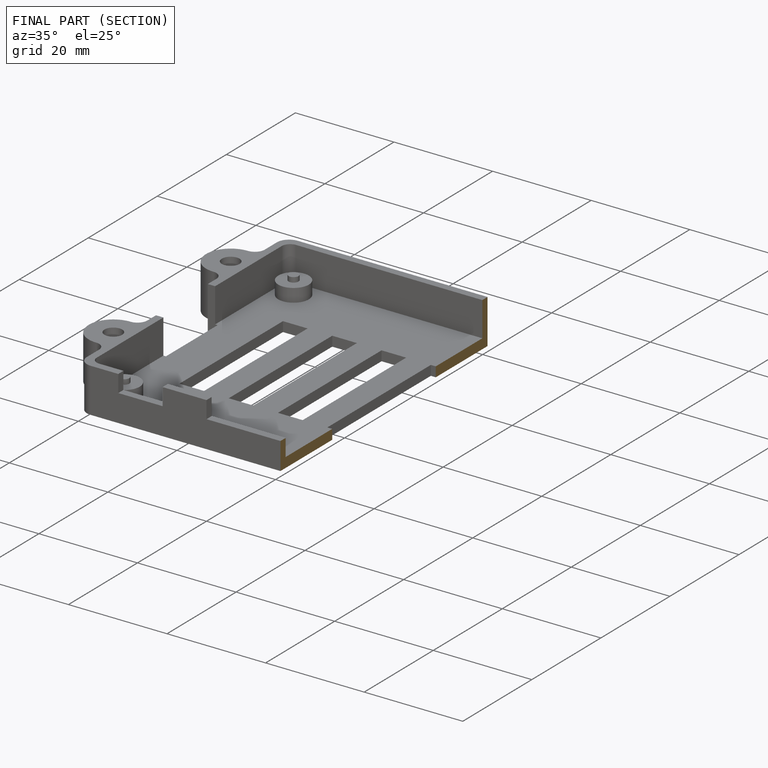
[diagram: finished part — half-section view (interior)]
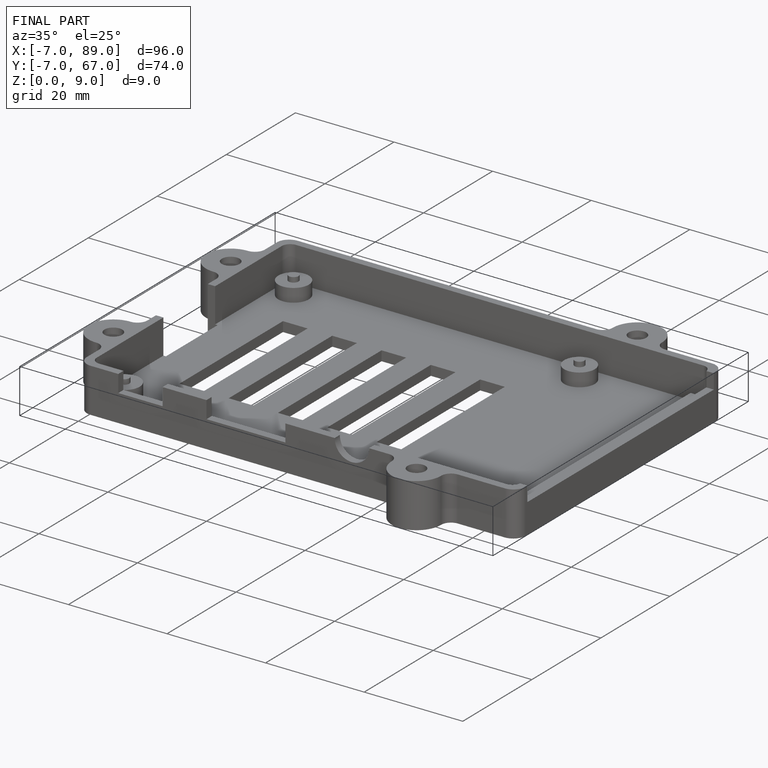
[diagram: finished part — iso view with bounding-box wireframe]
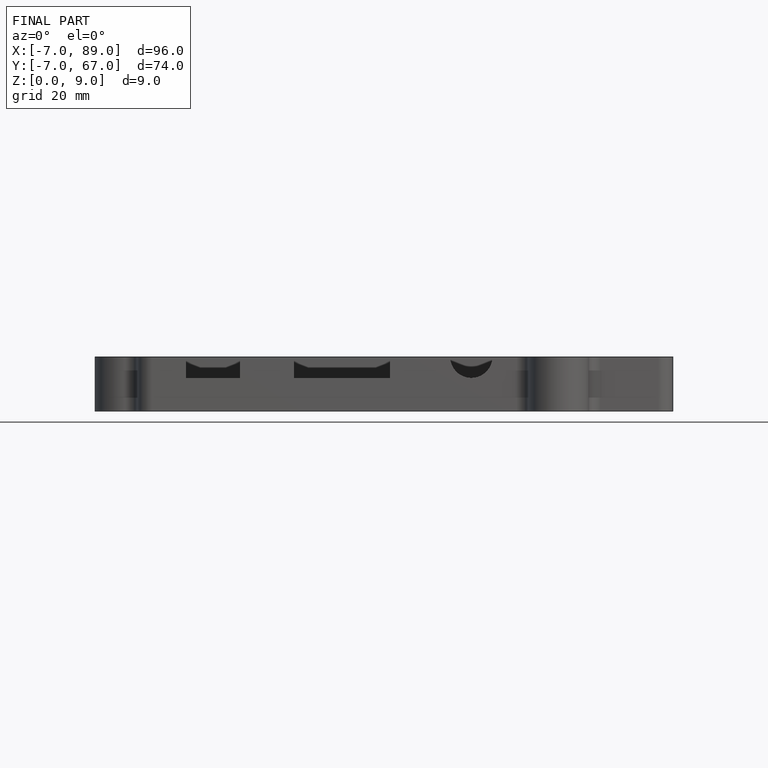
[diagram: finished part — front view with bounding-box wireframe]
